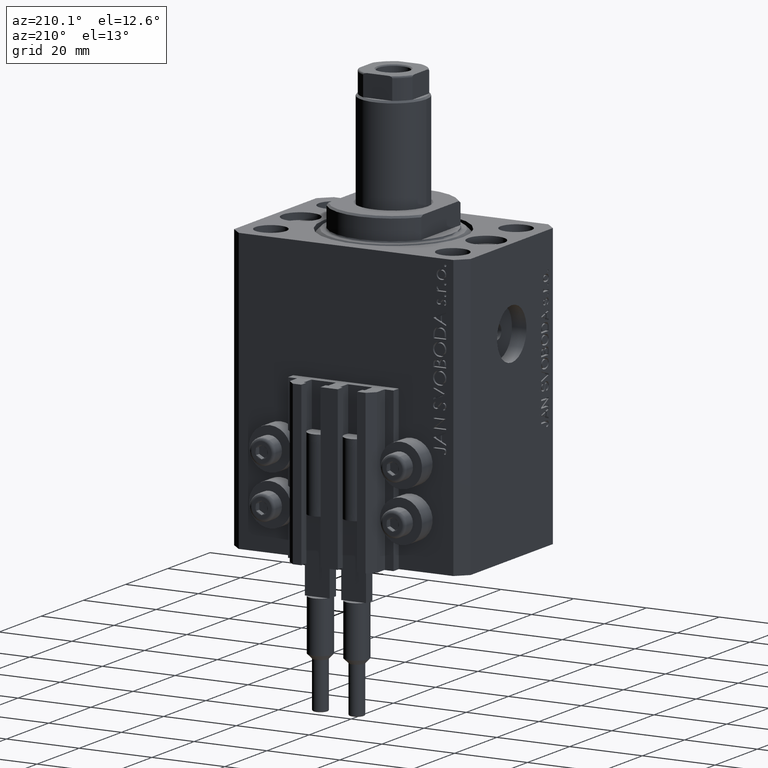
[diagram: clean part render]
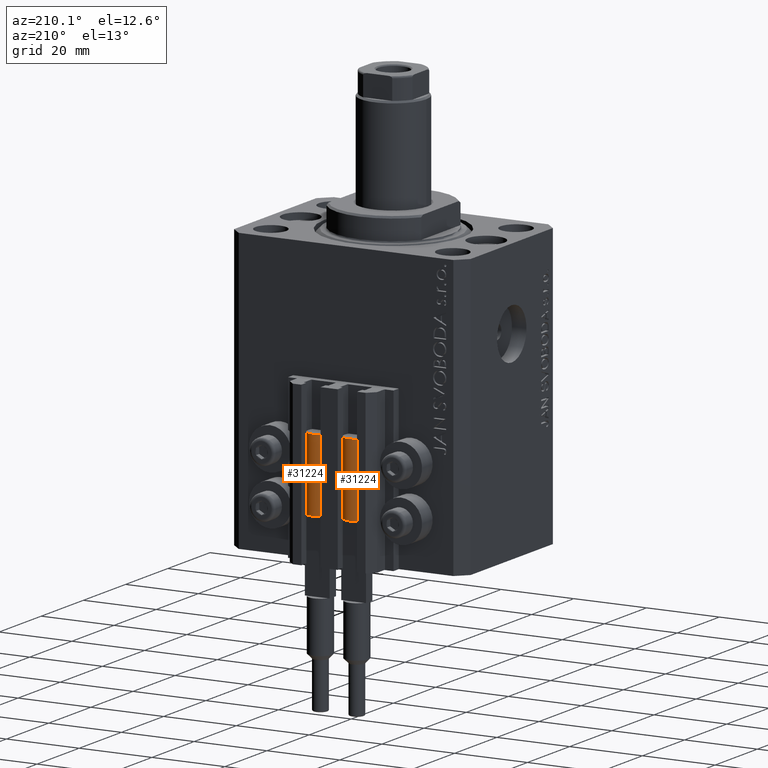
[diagram: same view with one multi-face feature highlighted, each face labeled with its STEP entity id]
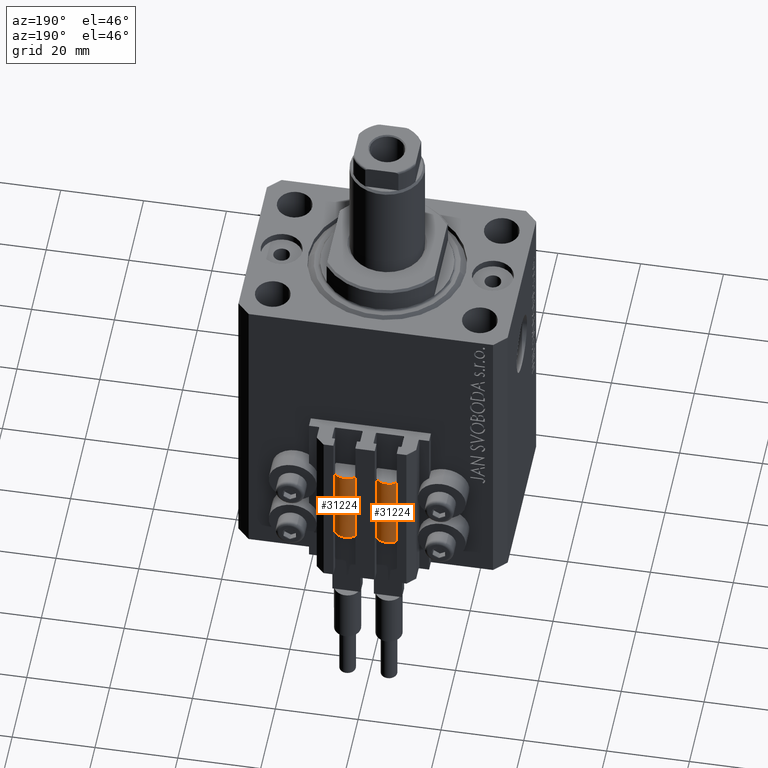
[diagram: same view with one multi-face feature highlighted, each face labeled with its STEP entity id]
A machine part, auxiliary view. The highlighted faces form ONE feature: a constant-radius fillet chain: 2 tangent blend faces with common blend radius 3.4 mm. The faces share edges in the B-rep.
A second angle (auxiliary view) of the same feature is appended — it is thin or edge-on in the first view.
Their STEP definitions:
[1] entity #31224 (Cylinder):
#713 = VERTEX_POINT ( 'NONE', #17540 ) ;
#1814 = ORIENTED_EDGE ( 'NONE', *, *, #12248, .T. ) ;
#2087 = ORIENTED_EDGE ( 'NONE', *, *, #6484, .F. ) ;
#2567 = VERTEX_POINT ( 'NONE', #46688 ) ;
#2715 = DIRECTION ( 'NONE',  ( 0.000000000000000000, 0.000000000000000000, 1.000000000000000000 ) ) ;
#2796 = DIRECTION ( 'NONE',  ( -0.000000000000000000, -0.000000000000000000, -1.000000000000000000 ) ) ;
#2935 = CIRCLE ( 'NONE', #40865, 3.400000000000000355 ) ;
#3207 = DIRECTION ( 'NONE',  ( 0.000000000000000000, 0.000000000000000000, 1.000000000000000000 ) ) ;
#6484 = EDGE_CURVE ( 'NONE', #713, #25786, #27758, .T. ) ;
#7072 = DIRECTION ( 'NONE',  ( 1.000000000000000000, 0.000000000000000000, 0.000000000000000000 ) ) ;
#7435 = AXIS2_PLACEMENT_3D ( 'NONE', #43406, #25441, #37067 ) ;
#7646 = CARTESIAN_POINT ( 'NONE',  ( 3.051229260478471428, -1.500000000000000000, 20.00000000000000000 ) ) ;
#8157 = VERTEX_POINT ( 'NONE', #11426 ) ;
#9756 = CIRCLE ( 'NONE', #39157, 3.400000000000000355 ) ;
#9786 = AXIS2_PLACEMENT_3D ( 'NONE', #47404, #2796, #25798 ) ;
#10511 = CARTESIAN_POINT ( 'NONE',  ( -3.400000000000000355, 0.000000000000000000, 20.00000000000000000 ) ) ;
#11426 = CARTESIAN_POINT ( 'NONE',  ( -3.400000000000000355, 0.000000000000000000, 0.000000000000000000 ) ) ;
#12248 = EDGE_CURVE ( 'NONE', #2567, #8157, #46878, .T. ) ;
#13319 = DIRECTION ( 'NONE',  ( 0.000000000000000000, 0.000000000000000000, 1.000000000000000000 ) ) ;
#13661 = DIRECTION ( 'NONE',  ( -0.000000000000000000, -0.000000000000000000, -1.000000000000000000 ) ) ;
#16246 = CARTESIAN_POINT ( 'NONE',  ( 0.000000000000000000, 0.000000000000000000, 20.00000000000000000 ) ) ;
#17540 = CARTESIAN_POINT ( 'NONE',  ( 3.400000000000000355, 0.000000000000000000, 20.00000000000000000 ) ) ;
#18546 = FACE_OUTER_BOUND ( 'NONE', #40268, .T. ) ;
#19037 = EDGE_CURVE ( 'NONE', #35306, #20137, #28174, .T. ) ;
#19406 = ORIENTED_EDGE ( 'NONE', *, *, #19037, .F. ) ;
#20137 = VERTEX_POINT ( 'NONE', #7646 ) ;
#20493 = CARTESIAN_POINT ( 'NONE',  ( 3.400000000000000355, 4.163799117101001052E-16, 20.00000000000000000 ) ) ;
#21379 = CARTESIAN_POINT ( 'NONE',  ( 0.000000000000000000, 0.000000000000000000, 20.00000000000000000 ) ) ;
#22177 = CYLINDRICAL_SURFACE ( 'NONE', #9786, 3.400000000000000355 ) ;
#25441 = DIRECTION ( 'NONE',  ( 0.000000000000000000, 0.000000000000000000, 1.000000000000000000 ) ) ;
#25786 = VERTEX_POINT ( 'NONE', #47987 ) ;
#25798 = DIRECTION ( 'NONE',  ( -1.000000000000000000, 0.000000000000000000, 0.000000000000000000 ) ) ;
#27074 = CARTESIAN_POINT ( 'NONE',  ( -3.051229260478471428, -1.500000000000000000, 20.00000000000000000 ) ) ;
#27758 = LINE ( 'NONE', #20493, #34622 ) ;
#28174 = CIRCLE ( 'NONE', #39816, 3.400000000000000355 ) ;
#28407 = DIRECTION ( 'NONE',  ( 1.000000000000000000, 0.000000000000000000, 0.000000000000000000 ) ) ;
#29883 = CIRCLE ( 'NONE', #7435, 3.400000000000000355 ) ;
#30296 = EDGE_CURVE ( 'NONE', #8157, #25786, #9756, .T. ) ;
#30610 = EDGE_CURVE ( 'NONE', #20137, #713, #29883, .T. ) ;
#30770 = DIRECTION ( 'NONE',  ( 1.000000000000000000, 0.000000000000000000, 0.000000000000000000 ) ) ;
#30933 = ORIENTED_EDGE ( 'NONE', *, *, #38126, .F. ) ;
#31141 = DIRECTION ( 'NONE',  ( -0.000000000000000000, -0.000000000000000000, -1.000000000000000000 ) ) ;
#31224 = ADVANCED_FACE ( 'NONE', ( #18546 ), #22177, .T. ) ;
#34622 = VECTOR ( 'NONE', #31141, 1000.000000000000000 ) ;
#35306 = VERTEX_POINT ( 'NONE', #27074 ) ;
#35763 = ORIENTED_EDGE ( 'NONE', *, *, #30610, .F. ) ;
#37067 = DIRECTION ( 'NONE',  ( 1.000000000000000000, 0.000000000000000000, 0.000000000000000000 ) ) ;
#38126 = EDGE_CURVE ( 'NONE', #2567, #35306, #2935, .T. ) ;
#39157 = AXIS2_PLACEMENT_3D ( 'NONE', #47339, #3207, #28407 ) ;
#39412 = ORIENTED_EDGE ( 'NONE', *, *, #30296, .T. ) ;
#39816 = AXIS2_PLACEMENT_3D ( 'NONE', #21379, #2715, #7072 ) ;
#40268 = EDGE_LOOP ( 'NONE', ( #2087, #35763, #19406, #30933, #1814, #39412 ) ) ;
#40658 = VECTOR ( 'NONE', #13661, 1000.000000000000000 ) ;
#40865 = AXIS2_PLACEMENT_3D ( 'NONE', #16246, #13319, #30770 ) ;
#43406 = CARTESIAN_POINT ( 'NONE',  ( 0.000000000000000000, 0.000000000000000000, 20.00000000000000000 ) ) ;
#46688 = CARTESIAN_POINT ( 'NONE',  ( -3.399999999999999467, -4.915049848600952119E-16, 20.00000000000000000 ) ) ;
#46878 = LINE ( 'NONE', #10511, #40658 ) ;
#47339 = CARTESIAN_POINT ( 'NONE',  ( 0.000000000000000000, 0.000000000000000000, 0.000000000000000000 ) ) ;
#47404 = CARTESIAN_POINT ( 'NONE',  ( 0.000000000000000000, 0.000000000000000000, 20.00000000000000000 ) ) ;
#47987 = CARTESIAN_POINT ( 'NONE',  ( 3.400000000000000355, 4.163799117101001052E-16, 0.000000000000000000 ) ) ;
[2] entity #31224 (Cylinder):
#713 = VERTEX_POINT ( 'NONE', #17540 ) ;
#1814 = ORIENTED_EDGE ( 'NONE', *, *, #12248, .T. ) ;
#2087 = ORIENTED_EDGE ( 'NONE', *, *, #6484, .F. ) ;
#2567 = VERTEX_POINT ( 'NONE', #46688 ) ;
#2715 = DIRECTION ( 'NONE',  ( 0.000000000000000000, 0.000000000000000000, 1.000000000000000000 ) ) ;
#2796 = DIRECTION ( 'NONE',  ( -0.000000000000000000, -0.000000000000000000, -1.000000000000000000 ) ) ;
#2935 = CIRCLE ( 'NONE', #40865, 3.400000000000000355 ) ;
#3207 = DIRECTION ( 'NONE',  ( 0.000000000000000000, 0.000000000000000000, 1.000000000000000000 ) ) ;
#6484 = EDGE_CURVE ( 'NONE', #713, #25786, #27758, .T. ) ;
#7072 = DIRECTION ( 'NONE',  ( 1.000000000000000000, 0.000000000000000000, 0.000000000000000000 ) ) ;
#7435 = AXIS2_PLACEMENT_3D ( 'NONE', #43406, #25441, #37067 ) ;
#7646 = CARTESIAN_POINT ( 'NONE',  ( 3.051229260478471428, -1.500000000000000000, 20.00000000000000000 ) ) ;
#8157 = VERTEX_POINT ( 'NONE', #11426 ) ;
#9756 = CIRCLE ( 'NONE', #39157, 3.400000000000000355 ) ;
#9786 = AXIS2_PLACEMENT_3D ( 'NONE', #47404, #2796, #25798 ) ;
#10511 = CARTESIAN_POINT ( 'NONE',  ( -3.400000000000000355, 0.000000000000000000, 20.00000000000000000 ) ) ;
#11426 = CARTESIAN_POINT ( 'NONE',  ( -3.400000000000000355, 0.000000000000000000, 0.000000000000000000 ) ) ;
#12248 = EDGE_CURVE ( 'NONE', #2567, #8157, #46878, .T. ) ;
#13319 = DIRECTION ( 'NONE',  ( 0.000000000000000000, 0.000000000000000000, 1.000000000000000000 ) ) ;
#13661 = DIRECTION ( 'NONE',  ( -0.000000000000000000, -0.000000000000000000, -1.000000000000000000 ) ) ;
#16246 = CARTESIAN_POINT ( 'NONE',  ( 0.000000000000000000, 0.000000000000000000, 20.00000000000000000 ) ) ;
#17540 = CARTESIAN_POINT ( 'NONE',  ( 3.400000000000000355, 0.000000000000000000, 20.00000000000000000 ) ) ;
#18546 = FACE_OUTER_BOUND ( 'NONE', #40268, .T. ) ;
#19037 = EDGE_CURVE ( 'NONE', #35306, #20137, #28174, .T. ) ;
#19406 = ORIENTED_EDGE ( 'NONE', *, *, #19037, .F. ) ;
#20137 = VERTEX_POINT ( 'NONE', #7646 ) ;
#20493 = CARTESIAN_POINT ( 'NONE',  ( 3.400000000000000355, 4.163799117101001052E-16, 20.00000000000000000 ) ) ;
#21379 = CARTESIAN_POINT ( 'NONE',  ( 0.000000000000000000, 0.000000000000000000, 20.00000000000000000 ) ) ;
#22177 = CYLINDRICAL_SURFACE ( 'NONE', #9786, 3.400000000000000355 ) ;
#25441 = DIRECTION ( 'NONE',  ( 0.000000000000000000, 0.000000000000000000, 1.000000000000000000 ) ) ;
#25786 = VERTEX_POINT ( 'NONE', #47987 ) ;
#25798 = DIRECTION ( 'NONE',  ( -1.000000000000000000, 0.000000000000000000, 0.000000000000000000 ) ) ;
#27074 = CARTESIAN_POINT ( 'NONE',  ( -3.051229260478471428, -1.500000000000000000, 20.00000000000000000 ) ) ;
#27758 = LINE ( 'NONE', #20493, #34622 ) ;
#28174 = CIRCLE ( 'NONE', #39816, 3.400000000000000355 ) ;
#28407 = DIRECTION ( 'NONE',  ( 1.000000000000000000, 0.000000000000000000, 0.000000000000000000 ) ) ;
#29883 = CIRCLE ( 'NONE', #7435, 3.400000000000000355 ) ;
#30296 = EDGE_CURVE ( 'NONE', #8157, #25786, #9756, .T. ) ;
#30610 = EDGE_CURVE ( 'NONE', #20137, #713, #29883, .T. ) ;
#30770 = DIRECTION ( 'NONE',  ( 1.000000000000000000, 0.000000000000000000, 0.000000000000000000 ) ) ;
#30933 = ORIENTED_EDGE ( 'NONE', *, *, #38126, .F. ) ;
#31141 = DIRECTION ( 'NONE',  ( -0.000000000000000000, -0.000000000000000000, -1.000000000000000000 ) ) ;
#31224 = ADVANCED_FACE ( 'NONE', ( #18546 ), #22177, .T. ) ;
#34622 = VECTOR ( 'NONE', #31141, 1000.000000000000000 ) ;
#35306 = VERTEX_POINT ( 'NONE', #27074 ) ;
#35763 = ORIENTED_EDGE ( 'NONE', *, *, #30610, .F. ) ;
#37067 = DIRECTION ( 'NONE',  ( 1.000000000000000000, 0.000000000000000000, 0.000000000000000000 ) ) ;
#38126 = EDGE_CURVE ( 'NONE', #2567, #35306, #2935, .T. ) ;
#39157 = AXIS2_PLACEMENT_3D ( 'NONE', #47339, #3207, #28407 ) ;
#39412 = ORIENTED_EDGE ( 'NONE', *, *, #30296, .T. ) ;
#39816 = AXIS2_PLACEMENT_3D ( 'NONE', #21379, #2715, #7072 ) ;
#40268 = EDGE_LOOP ( 'NONE', ( #2087, #35763, #19406, #30933, #1814, #39412 ) ) ;
#40658 = VECTOR ( 'NONE', #13661, 1000.000000000000000 ) ;
#40865 = AXIS2_PLACEMENT_3D ( 'NONE', #16246, #13319, #30770 ) ;
#43406 = CARTESIAN_POINT ( 'NONE',  ( 0.000000000000000000, 0.000000000000000000, 20.00000000000000000 ) ) ;
#46688 = CARTESIAN_POINT ( 'NONE',  ( -3.399999999999999467, -4.915049848600952119E-16, 20.00000000000000000 ) ) ;
#46878 = LINE ( 'NONE', #10511, #40658 ) ;
#47339 = CARTESIAN_POINT ( 'NONE',  ( 0.000000000000000000, 0.000000000000000000, 0.000000000000000000 ) ) ;
#47404 = CARTESIAN_POINT ( 'NONE',  ( 0.000000000000000000, 0.000000000000000000, 20.00000000000000000 ) ) ;
#47987 = CARTESIAN_POINT ( 'NONE',  ( 3.400000000000000355, 4.163799117101001052E-16, 0.000000000000000000 ) ) ;